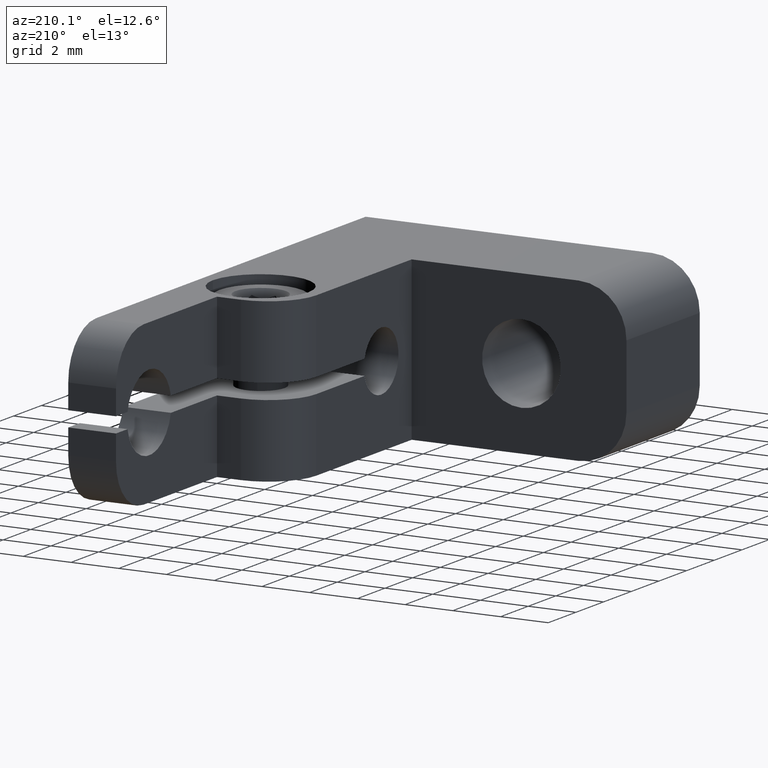
[diagram: clean part render]
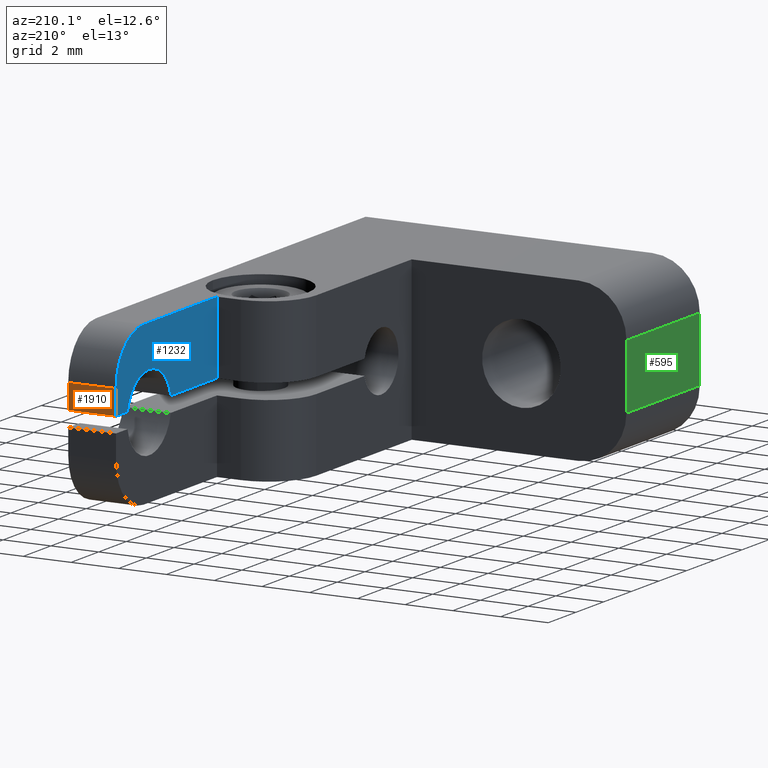
[diagram: same view with three faces highlighted in distinct colors, each labeled with its STEP entity id]
A machine part, auxiliary view with three faces highlighted in distinct colors.
Their STEP definitions:

[orange] entity #1910 — the highlighted planar face has unit normal (0, -1, 0).
#113 = LINE ( 'NONE', #1623, #1535 ) ;
#167 = DIRECTION ( 'NONE',  ( 0.000000000000000000, -0.000000000000000000, -1.000000000000000000 ) ) ;
#355 = CARTESIAN_POINT ( 'NONE',  ( 0.000000000000000000, 21.50000000000000000, 3.350000000000000089 ) ) ;
#374 = EDGE_LOOP ( 'NONE', ( #1404, #1776, #1697, #2000 ) ) ;
#382 = CARTESIAN_POINT ( 'NONE',  ( 0.000000000000000000, 21.50000000000000000, 1.350000000000000089 ) ) ;
#408 = VERTEX_POINT ( 'NONE', #493 ) ;
#471 = CARTESIAN_POINT ( 'NONE',  ( -2.000000000000000000, 21.50000000000000000, 1.350000000000000089 ) ) ;
#493 = CARTESIAN_POINT ( 'NONE',  ( 0.000000000000000000, 21.50000000000000000, 1.350000000000000089 ) ) ;
#532 = CARTESIAN_POINT ( 'NONE',  ( 0.000000000000000000, 21.50000000000000000, 0.3200000000000003952 ) ) ;
#570 = VECTOR ( 'NONE', #1053, 1000.000000000000000 ) ;
#625 = VERTEX_POINT ( 'NONE', #532 ) ;
#745 = EDGE_CURVE ( 'NONE', #1073, #2181, #915, .T. ) ;
#762 = EDGE_CURVE ( 'NONE', #408, #625, #1970, .T. ) ;
#765 = DIRECTION ( 'NONE',  ( -0.000000000000000000, -0.000000000000000000, -1.000000000000000000 ) ) ;
#792 = EDGE_CURVE ( 'NONE', #2181, #625, #113, .T. ) ;
#915 = LINE ( 'NONE', #925, #1961 ) ;
#925 = CARTESIAN_POINT ( 'NONE',  ( -2.000000000000000000, 21.50000000000000000, 3.350000000000000089 ) ) ;
#941 = CARTESIAN_POINT ( 'NONE',  ( -2.000000000000003553, 21.50000000000000000, 0.3200000000000003952 ) ) ;
#944 = DIRECTION ( 'NONE',  ( -0.000000000000000000, -0.000000000000000000, -1.000000000000000000 ) ) ;
#1004 = PLANE ( 'NONE',  #1442 ) ;
#1053 = DIRECTION ( 'NONE',  ( 1.000000000000000000, -0.000000000000000000, -0.000000000000000000 ) ) ;
#1073 = VERTEX_POINT ( 'NONE', #471 ) ;
#1404 = ORIENTED_EDGE ( 'NONE', *, *, #745, .F. ) ;
#1442 = AXIS2_PLACEMENT_3D ( 'NONE', #355, #1685, #167 ) ;
#1481 = EDGE_CURVE ( 'NONE', #1073, #408, #1742, .T. ) ;
#1535 = VECTOR ( 'NONE', #1770, 1000.000000000000000 ) ;
#1614 = CARTESIAN_POINT ( 'NONE',  ( 0.000000000000000000, 21.50000000000000000, 3.350000000000000089 ) ) ;
#1623 = CARTESIAN_POINT ( 'NONE',  ( -14.00099999999999945, 21.50000000000000000, 0.3200000000000003952 ) ) ;
#1685 = DIRECTION ( 'NONE',  ( 0.000000000000000000, -1.000000000000000000, 0.000000000000000000 ) ) ;
#1697 = ORIENTED_EDGE ( 'NONE', *, *, #762, .T. ) ;
#1742 = LINE ( 'NONE', #382, #570 ) ;
#1770 = DIRECTION ( 'NONE',  ( 1.000000000000000000, -0.000000000000000000, -0.000000000000000000 ) ) ;
#1776 = ORIENTED_EDGE ( 'NONE', *, *, #1481, .T. ) ;
#1852 = FACE_OUTER_BOUND ( 'NONE', #374, .T. ) ;
#1910 = ADVANCED_FACE ( 'NONE', ( #1852 ), #1004, .F. ) ;
#1961 = VECTOR ( 'NONE', #765, 1000.000000000000000 ) ;
#1970 = LINE ( 'NONE', #1614, #2168 ) ;
#2000 = ORIENTED_EDGE ( 'NONE', *, *, #792, .F. ) ;
#2168 = VECTOR ( 'NONE', #944, 1000.000000000000000 ) ;
#2181 = VERTEX_POINT ( 'NONE', #941 ) ;

[blue] entity #1232 — the highlighted planar face has unit normal (1, 0, 0).
#7 = CARTESIAN_POINT ( 'NONE',  ( -1.999999999999999556, 19.49999999999999645, 1.350000000000000089 ) ) ;
#37 = DIRECTION ( 'NONE',  ( -1.188166764367676342E-16, 1.000000000000000000, 1.356136956839420588E-16 ) ) ;
#115 = VECTOR ( 'NONE', #37, 1000.000000000000000 ) ;
#123 = EDGE_CURVE ( 'NONE', #1104, #1073, #1531, .T. ) ;
#157 = CARTESIAN_POINT ( 'NONE',  ( -1.999999999999998224, 14.19999999999999929, 0.3199999999999994515 ) ) ;
#180 = LINE ( 'NONE', #855, #115 ) ;
#216 = VERTEX_POINT ( 'NONE', #1746 ) ;
#295 = PLANE ( 'NONE',  #952 ) ;
#337 = AXIS2_PLACEMENT_3D ( 'NONE', #7, #1226, #1204 ) ;
#345 = EDGE_CURVE ( 'NONE', #1104, #216, #1834, .T. ) ;
#356 = CARTESIAN_POINT ( 'NONE',  ( -2.000000000000003553, 20.66767343538123569, 0.3200000000000001732 ) ) ;
#385 = EDGE_LOOP ( 'NONE', ( #1066, #1138, #1187, #1008, #964, #623, #2098, #418 ) ) ;
#388 = DIRECTION ( 'NONE',  ( 0.000000000000000000, 1.000000000000000000, -1.776356839400250070E-15 ) ) ;
#418 = ORIENTED_EDGE ( 'NONE', *, *, #624, .F. ) ;
#422 = DIRECTION ( 'NONE',  ( 0.000000000000000000, 1.000000000000000000, 1.776356839400250070E-15 ) ) ;
#471 = CARTESIAN_POINT ( 'NONE',  ( -2.000000000000000000, 21.50000000000000000, 1.350000000000000089 ) ) ;
#585 = CIRCLE ( 'NONE', #715, 1.600000000000000755 ) ;
#590 = VERTEX_POINT ( 'NONE', #356 ) ;
#623 = ORIENTED_EDGE ( 'NONE', *, *, #1611, .F. ) ;
#624 = EDGE_CURVE ( 'NONE', #216, #1385, #690, .T. ) ;
#671 = DIRECTION ( 'NONE',  ( -1.188166764367676342E-16, 1.000000000000000000, 1.356136956839420588E-16 ) ) ;
#682 = VECTOR ( 'NONE', #2044, 1000.000000000000000 ) ;
#690 = LINE ( 'NONE', #1372, #682 ) ;
#715 = AXIS2_PLACEMENT_3D ( 'NONE', #800, #1475, #388 ) ;
#738 = AXIS2_PLACEMENT_3D ( 'NONE', #1260, #1944, #422 ) ;
#745 = EDGE_CURVE ( 'NONE', #1073, #2181, #915, .T. ) ;
#757 = VERTEX_POINT ( 'NONE', #1593 ) ;
#765 = DIRECTION ( 'NONE',  ( -0.000000000000000000, -0.000000000000000000, -1.000000000000000000 ) ) ;
#768 = VECTOR ( 'NONE', #671, 1000.000000000000000 ) ;
#777 = VERTEX_POINT ( 'NONE', #1792 ) ;
#785 = DIRECTION ( 'NONE',  ( 1.188166764367676342E-16, -1.000000000000000000, 0.000000000000000000 ) ) ;
#800 = CARTESIAN_POINT ( 'NONE',  ( -2.000000000000000000, 19.10000000000000142, -4.336808689942017736E-16 ) ) ;
#840 = CARTESIAN_POINT ( 'NONE',  ( -2.000000000000000000, 21.50000000000000000, 0.3200000000000003952 ) ) ;
#855 = CARTESIAN_POINT ( 'NONE',  ( -2.000000000000000000, 21.50000000000000000, 0.3200000000000003952 ) ) ;
#906 = EDGE_CURVE ( 'NONE', #757, #590, #585, .T. ) ;
#915 = LINE ( 'NONE', #925, #1961 ) ;
#925 = CARTESIAN_POINT ( 'NONE',  ( -2.000000000000000000, 21.50000000000000000, 3.350000000000000089 ) ) ;
#936 = DIRECTION ( 'NONE',  ( -1.188166764367676342E-16, 1.000000000000000000, 0.000000000000000000 ) ) ;
#938 = CARTESIAN_POINT ( 'NONE',  ( -2.000000000000000000, 21.50000000000000000, 3.350000000000000089 ) ) ;
#941 = CARTESIAN_POINT ( 'NONE',  ( -2.000000000000003553, 21.50000000000000000, 0.3200000000000003952 ) ) ;
#952 = AXIS2_PLACEMENT_3D ( 'NONE', #980, #1456, #936 ) ;
#964 = ORIENTED_EDGE ( 'NONE', *, *, #906, .F. ) ;
#980 = CARTESIAN_POINT ( 'NONE',  ( -2.000000000000000000, 21.50000000000000000, 3.350000000000000089 ) ) ;
#1008 = ORIENTED_EDGE ( 'NONE', *, *, #1380, .F. ) ;
#1066 = ORIENTED_EDGE ( 'NONE', *, *, #345, .F. ) ;
#1073 = VERTEX_POINT ( 'NONE', #471 ) ;
#1104 = VERTEX_POINT ( 'NONE', #1461 ) ;
#1124 = FACE_OUTER_BOUND ( 'NONE', #385, .T. ) ;
#1138 = ORIENTED_EDGE ( 'NONE', *, *, #123, .T. ) ;
#1187 = ORIENTED_EDGE ( 'NONE', *, *, #745, .T. ) ;
#1204 = DIRECTION ( 'NONE',  ( -2.168404344971006896E-16, 1.000000000000000000, 0.000000000000000000 ) ) ;
#1226 = DIRECTION ( 'NONE',  ( -1.000000000000000000, -1.188166764367676342E-16, 0.000000000000000000 ) ) ;
#1232 = ADVANCED_FACE ( 'NONE', ( #1124 ), #295, .F. ) ;
#1260 = CARTESIAN_POINT ( 'NONE',  ( -2.000000000000000000, 19.10000000000000142, -4.336808689942017736E-16 ) ) ;
#1372 = CARTESIAN_POINT ( 'NONE',  ( -1.999999999999999112, 14.19999999999999929, 3.350000000000000089 ) ) ;
#1380 = EDGE_CURVE ( 'NONE', #590, #2181, #180, .T. ) ;
#1385 = VERTEX_POINT ( 'NONE', #157 ) ;
#1456 = DIRECTION ( 'NONE',  ( 1.000000000000000000, 1.188166764367676342E-16, -0.000000000000000000 ) ) ;
#1461 = CARTESIAN_POINT ( 'NONE',  ( -1.999999999999999556, 19.49999999999999645, 3.350000000000000089 ) ) ;
#1475 = DIRECTION ( 'NONE',  ( -1.000000000000000000, -1.188166764367676342E-16, 0.000000000000000000 ) ) ;
#1521 = LINE ( 'NONE', #840, #768 ) ;
#1531 = CIRCLE ( 'NONE', #337, 2.000000000000001776 ) ;
#1593 = CARTESIAN_POINT ( 'NONE',  ( -2.000000000000000000, 19.10000000000000142, 1.599999999999999867 ) ) ;
#1611 = EDGE_CURVE ( 'NONE', #777, #757, #1808, .T. ) ;
#1746 = CARTESIAN_POINT ( 'NONE',  ( -1.999999999999999112, 14.19999999999999929, 3.350000000000000089 ) ) ;
#1792 = CARTESIAN_POINT ( 'NONE',  ( -2.000000000000000000, 17.53232656461877070, 0.3199999999999998401 ) ) ;
#1808 = CIRCLE ( 'NONE', #738, 1.600000000000000755 ) ;
#1834 = LINE ( 'NONE', #938, #2061 ) ;
#1913 = EDGE_CURVE ( 'NONE', #1385, #777, #1521, .T. ) ;
#1944 = DIRECTION ( 'NONE',  ( -1.000000000000000000, -1.188166764367676342E-16, 0.000000000000000000 ) ) ;
#1961 = VECTOR ( 'NONE', #765, 1000.000000000000000 ) ;
#2044 = DIRECTION ( 'NONE',  ( -0.000000000000000000, -0.000000000000000000, -1.000000000000000000 ) ) ;
#2061 = VECTOR ( 'NONE', #785, 1000.000000000000000 ) ;
#2098 = ORIENTED_EDGE ( 'NONE', *, *, #1913, .F. ) ;
#2181 = VERTEX_POINT ( 'NONE', #941 ) ;

[green] entity #595 — the highlighted planar face has unit normal (1, 0, 0).
#33 = DIRECTION ( 'NONE',  ( -0.000000000000000000, -0.000000000000000000, -1.000000000000000000 ) ) ;
#69 = EDGE_CURVE ( 'NONE', #1794, #2112, #1837, .T. ) ;
#102 = CARTESIAN_POINT ( 'NONE',  ( -14.00000000000000000, 0.000000000000000000, 3.350000000000000089 ) ) ;
#124 = LINE ( 'NONE', #477, #642 ) ;
#166 = EDGE_CURVE ( 'NONE', #513, #1794, #1037, .T. ) ;
#200 = CARTESIAN_POINT ( 'NONE',  ( -14.00000000000000000, 5.299999999999999822, -1.350000000000000089 ) ) ;
#263 = ORIENTED_EDGE ( 'NONE', *, *, #166, .T. ) ;
#293 = DIRECTION ( 'NONE',  ( -0.000000000000000000, 1.000000000000000000, -0.000000000000000000 ) ) ;
#310 = ORIENTED_EDGE ( 'NONE', *, *, #781, .F. ) ;
#477 = CARTESIAN_POINT ( 'NONE',  ( -14.00000000000000000, 0.000000000000000000, 1.350000000000000089 ) ) ;
#478 = ORIENTED_EDGE ( 'NONE', *, *, #69, .T. ) ;
#512 = VECTOR ( 'NONE', #33, 1000.000000000000000 ) ;
#513 = VERTEX_POINT ( 'NONE', #1751 ) ;
#542 = PLANE ( 'NONE',  #1820 ) ;
#595 = ADVANCED_FACE ( 'NONE', ( #2054 ), #542, .F. ) ;
#642 = VECTOR ( 'NONE', #293, 1000.000000000000000 ) ;
#781 = EDGE_CURVE ( 'NONE', #1719, #2112, #1087, .T. ) ;
#988 = CARTESIAN_POINT ( 'NONE',  ( -14.00000000000000000, 0.000000000000000000, -1.350000000000000089 ) ) ;
#1037 = LINE ( 'NONE', #1714, #512 ) ;
#1087 = LINE ( 'NONE', #102, #1219 ) ;
#1217 = CARTESIAN_POINT ( 'NONE',  ( -14.00000000000000000, 0.000000000000000000, 3.350000000000000089 ) ) ;
#1219 = VECTOR ( 'NONE', #1440, 1000.000000000000000 ) ;
#1414 = EDGE_LOOP ( 'NONE', ( #263, #478, #310, #1981 ) ) ;
#1440 = DIRECTION ( 'NONE',  ( -0.000000000000000000, -0.000000000000000000, -1.000000000000000000 ) ) ;
#1669 = DIRECTION ( 'NONE',  ( 0.000000000000000000, -1.000000000000000000, 0.000000000000000000 ) ) ;
#1683 = EDGE_CURVE ( 'NONE', #1719, #513, #124, .T. ) ;
#1714 = CARTESIAN_POINT ( 'NONE',  ( -14.00000000000000000, 5.299999999999999822, 3.350000000000000089 ) ) ;
#1719 = VERTEX_POINT ( 'NONE', #1793 ) ;
#1726 = DIRECTION ( 'NONE',  ( 1.000000000000000000, 0.000000000000000000, 0.000000000000000000 ) ) ;
#1751 = CARTESIAN_POINT ( 'NONE',  ( -14.00000000000000000, 5.299999999999999822, 1.350000000000000089 ) ) ;
#1793 = CARTESIAN_POINT ( 'NONE',  ( -14.00000000000000000, 0.000000000000000000, 1.350000000000000089 ) ) ;
#1794 = VERTEX_POINT ( 'NONE', #200 ) ;
#1820 = AXIS2_PLACEMENT_3D ( 'NONE', #1217, #1726, #2075 ) ;
#1837 = LINE ( 'NONE', #988, #1958 ) ;
#1849 = CARTESIAN_POINT ( 'NONE',  ( -14.00000000000000000, 0.000000000000000000, -1.350000000000000089 ) ) ;
#1958 = VECTOR ( 'NONE', #1669, 1000.000000000000000 ) ;
#1981 = ORIENTED_EDGE ( 'NONE', *, *, #1683, .T. ) ;
#2054 = FACE_OUTER_BOUND ( 'NONE', #1414, .T. ) ;
#2075 = DIRECTION ( 'NONE',  ( 0.000000000000000000, 0.000000000000000000, -1.000000000000000000 ) ) ;
#2112 = VERTEX_POINT ( 'NONE', #1849 ) ;